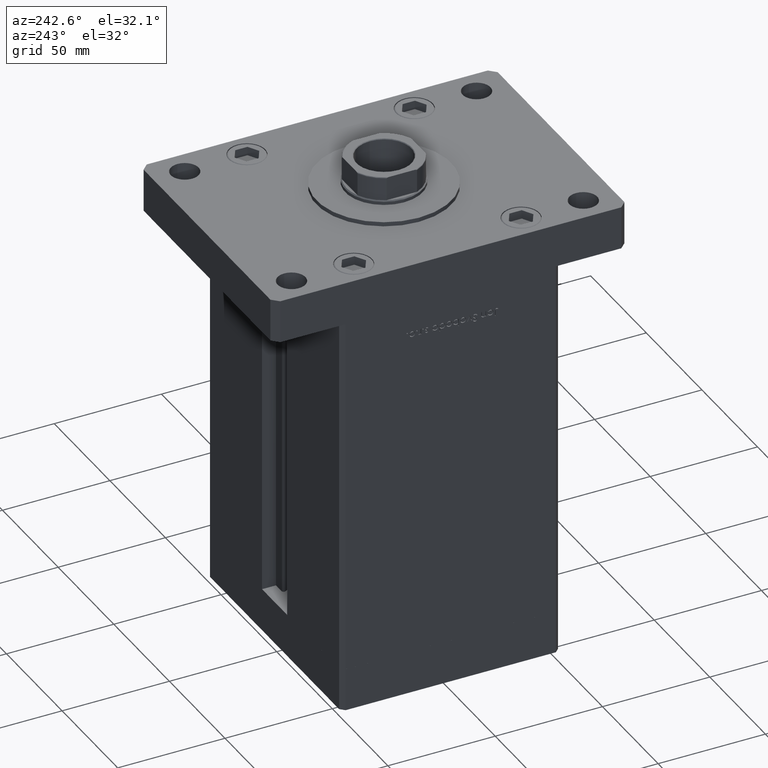
[diagram: clean part render]
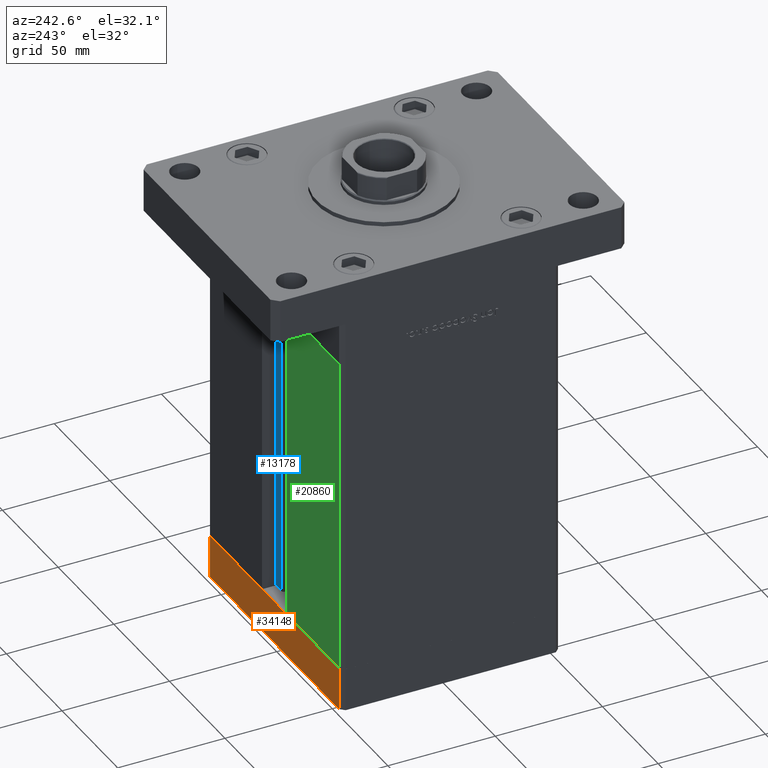
[diagram: same view with three faces highlighted in distinct colors, each labeled with its STEP entity id]
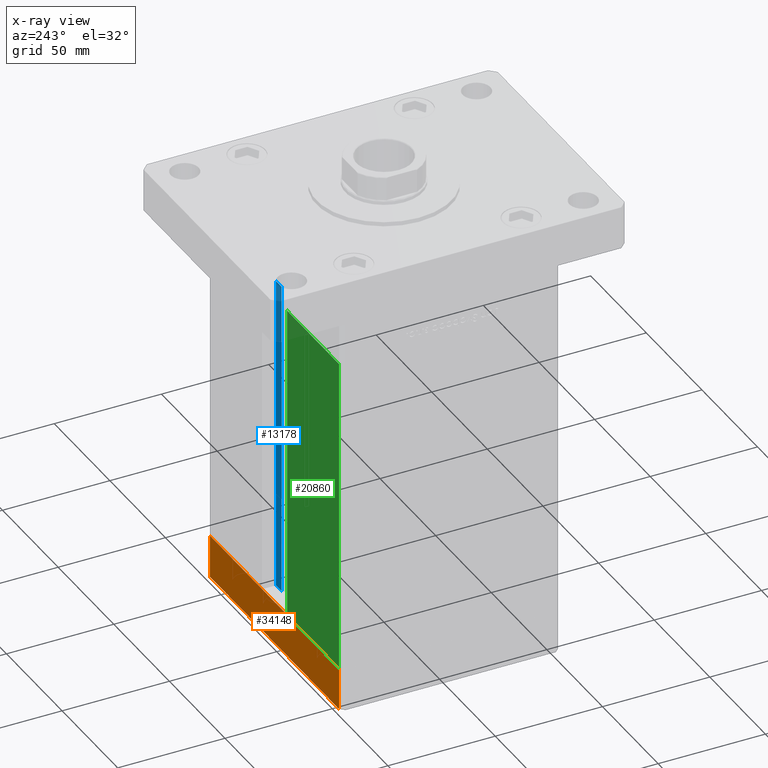
[diagram: x-ray of the same camera — body ghosted, the three highlighted faces saturated]
A machine part, auxiliary view with three faces highlighted in distinct colors.
The next image is the same camera in x-ray (body ghosted, the three faces saturated) — at least one of them is partly hidden behind the body in this view.
Their STEP definitions:

[orange] entity #34148 — the highlighted planar face has unit normal (0, 1, 0).
#1239 = VERTEX_POINT ( 'NONE', #17896 ) ;
#2197 = EDGE_LOOP ( 'NONE', ( #2390, #38543, #43592, #29533 ) ) ;
#2390 = ORIENTED_EDGE ( 'NONE', *, *, #27929, .F. ) ;
#3596 = CARTESIAN_POINT ( 'NONE',  ( -57.99999999999999289, 50.99999999999997868, -20.00000000000000000 ) ) ;
#4270 = CARTESIAN_POINT ( 'NONE',  ( 57.99999999999993605, 51.00000000000000711, -20.00000000000000000 ) ) ;
#5277 = CARTESIAN_POINT ( 'NONE',  ( 57.99999999999993605, 51.00000000000000711, -20.00000000000000000 ) ) ;
#7155 = VERTEX_POINT ( 'NONE', #10801 ) ;
#8346 = LINE ( 'NONE', #4270, #28857 ) ;
#8905 = LINE ( 'NONE', #42923, #33171 ) ;
#10801 = CARTESIAN_POINT ( 'NONE',  ( 57.99999999999993605, 51.00000000000000711, 0.000000000000000000 ) ) ;
#13573 = VECTOR ( 'NONE', #22764, 1000.000000000000000 ) ;
#14055 = DIRECTION ( 'NONE',  ( 0.000000000000000000, 0.000000000000000000, 1.000000000000000000 ) ) ;
#14091 = EDGE_CURVE ( 'NONE', #48320, #47201, #8346, .T. ) ;
#16516 = CARTESIAN_POINT ( 'NONE',  ( 57.99999999999993605, 51.00000000000000711, 0.000000000000000000 ) ) ;
#16806 = FACE_OUTER_BOUND ( 'NONE', #2197, .T. ) ;
#17896 = CARTESIAN_POINT ( 'NONE',  ( -57.99999999999999289, 50.99999999999997868, 0.000000000000000000 ) ) ;
#20892 = CARTESIAN_POINT ( 'NONE',  ( 57.99999999999993605, 51.00000000000000711, -20.00000000000000000 ) ) ;
#22764 = DIRECTION ( 'NONE',  ( 0.000000000000000000, 0.000000000000000000, 1.000000000000000000 ) ) ;
#26566 = LINE ( 'NONE', #52407, #13573 ) ;
#27929 = EDGE_CURVE ( 'NONE', #7155, #1239, #53807, .T. ) ;
#28857 = VECTOR ( 'NONE', #33947, 1000.000000000000000 ) ;
#29533 = ORIENTED_EDGE ( 'NONE', *, *, #35177, .T. ) ;
#32629 = VECTOR ( 'NONE', #33117, 1000.000000000000000 ) ;
#33117 = DIRECTION ( 'NONE',  ( -1.000000000000000000, -2.392722035830079958E-16, 0.000000000000000000 ) ) ;
#33171 = VECTOR ( 'NONE', #14055, 1000.000000000000000 ) ;
#33947 = DIRECTION ( 'NONE',  ( -1.000000000000000000, -2.392722035830079958E-16, 0.000000000000000000 ) ) ;
#33990 = AXIS2_PLACEMENT_3D ( 'NONE', #20892, #53569, #53831 ) ;
#34148 = ADVANCED_FACE ( 'NONE', ( #16806 ), #36970, .T. ) ;
#35177 = EDGE_CURVE ( 'NONE', #47201, #1239, #8905, .T. ) ;
#36970 = PLANE ( 'NONE',  #33990 ) ;
#38543 = ORIENTED_EDGE ( 'NONE', *, *, #53202, .F. ) ;
#42923 = CARTESIAN_POINT ( 'NONE',  ( -57.99999999999999289, 50.99999999999997868, -20.00000000000000000 ) ) ;
#43592 = ORIENTED_EDGE ( 'NONE', *, *, #14091, .T. ) ;
#47201 = VERTEX_POINT ( 'NONE', #3596 ) ;
#48320 = VERTEX_POINT ( 'NONE', #5277 ) ;
#52407 = CARTESIAN_POINT ( 'NONE',  ( 57.99999999999993605, 51.00000000000000711, -20.00000000000000000 ) ) ;
#53202 = EDGE_CURVE ( 'NONE', #48320, #7155, #26566, .T. ) ;
#53569 = DIRECTION ( 'NONE',  ( -2.392722035830079958E-16, 1.000000000000000000, 0.000000000000000000 ) ) ;
#53807 = LINE ( 'NONE', #16516, #32629 ) ;
#53831 = DIRECTION ( 'NONE',  ( -1.000000000000000000, -2.392722035830079958E-16, 0.000000000000000000 ) ) ;

[blue] entity #13178 — the highlighted planar face has unit normal (0, -1, 0).
#1051 = PLANE ( 'NONE',  #34918 ) ;
#2472 = EDGE_LOOP ( 'NONE', ( #11093, #16802, #29112, #45044 ) ) ;
#3771 = EDGE_CURVE ( 'NONE', #43218, #46542, #11744, .T. ) ;
#9486 = FACE_OUTER_BOUND ( 'NONE', #2472, .T. ) ;
#9618 = EDGE_CURVE ( 'NONE', #43218, #10336, #11582, .T. ) ;
#10336 = VERTEX_POINT ( 'NONE', #33322 ) ;
#10445 = CARTESIAN_POINT ( 'NONE',  ( 11.25000000000000178, 44.50000000000000000, 0.000000000000000000 ) ) ;
#11093 = ORIENTED_EDGE ( 'NONE', *, *, #38755, .F. ) ;
#11172 = VECTOR ( 'NONE', #41413, 1000.000000000000000 ) ;
#11582 = LINE ( 'NONE', #52972, #25263 ) ;
#11744 = LINE ( 'NONE', #28091, #11172 ) ;
#12310 = DIRECTION ( 'NONE',  ( -1.000000000000000000, 0.000000000000000000, 0.000000000000000000 ) ) ;
#13178 = ADVANCED_FACE ( 'NONE', ( #9486 ), #1051, .F. ) ;
#13837 = DIRECTION ( 'NONE',  ( 0.000000000000000000, -0.000000000000000000, -1.000000000000000000 ) ) ;
#16802 = ORIENTED_EDGE ( 'NONE', *, *, #3771, .F. ) ;
#21312 = LINE ( 'NONE', #49607, #30486 ) ;
#25149 = CARTESIAN_POINT ( 'NONE',  ( 6.183333333334001480, 44.50000000000000000, 0.000000000000000000 ) ) ;
#25263 = VECTOR ( 'NONE', #28200, 1000.000000000000000 ) ;
#28091 = CARTESIAN_POINT ( 'NONE',  ( 6.183333333334001480, 44.50000000000000000, 0.000000000000000000 ) ) ;
#28200 = DIRECTION ( 'NONE',  ( -0.000000000000000000, -0.000000000000000000, 1.000000000000000000 ) ) ;
#29112 = ORIENTED_EDGE ( 'NONE', *, *, #9618, .T. ) ;
#30486 = VECTOR ( 'NONE', #12310, 1000.000000000000000 ) ;
#32212 = VERTEX_POINT ( 'NONE', #51976 ) ;
#33322 = CARTESIAN_POINT ( 'NONE',  ( 6.183333333334001480, 44.50000000000000000, 148.5000000000000000 ) ) ;
#34494 = EDGE_CURVE ( 'NONE', #32212, #10336, #21312, .T. ) ;
#34918 = AXIS2_PLACEMENT_3D ( 'NONE', #47049, #50878, #13837 ) ;
#38467 = VECTOR ( 'NONE', #43667, 1000.000000000000000 ) ;
#38755 = EDGE_CURVE ( 'NONE', #46542, #32212, #52107, .T. ) ;
#41413 = DIRECTION ( 'NONE',  ( 1.000000000000000000, 0.000000000000000000, 0.000000000000000000 ) ) ;
#43218 = VERTEX_POINT ( 'NONE', #25149 ) ;
#43667 = DIRECTION ( 'NONE',  ( -0.000000000000000000, -0.000000000000000000, 1.000000000000000000 ) ) ;
#45044 = ORIENTED_EDGE ( 'NONE', *, *, #34494, .F. ) ;
#45377 = CARTESIAN_POINT ( 'NONE',  ( 11.25000000000000178, 44.50000000000000000, 0.000000000000000000 ) ) ;
#46542 = VERTEX_POINT ( 'NONE', #45377 ) ;
#47049 = CARTESIAN_POINT ( 'NONE',  ( 6.183333333334001480, 44.50000000000000000, 0.000000000000000000 ) ) ;
#49607 = CARTESIAN_POINT ( 'NONE',  ( 0.000000000000000000, 44.50000000000000000, 148.5000000000000000 ) ) ;
#50878 = DIRECTION ( 'NONE',  ( 0.000000000000000000, -1.000000000000000000, 0.000000000000000000 ) ) ;
#51976 = CARTESIAN_POINT ( 'NONE',  ( 11.25000000000000178, 44.50000000000000000, 148.5000000000000000 ) ) ;
#52107 = LINE ( 'NONE', #10445, #38467 ) ;
#52972 = CARTESIAN_POINT ( 'NONE',  ( 6.183333333334001480, 44.50000000000000000, 0.000000000000000000 ) ) ;

[green] entity #20860 — the highlighted planar face has unit normal (-0, -1, 0).
#2920 = VERTEX_POINT ( 'NONE', #4095 ) ;
#4095 = CARTESIAN_POINT ( 'NONE',  ( -57.99999999999999289, 51.00000000000000711, 148.5000000000000000 ) ) ;
#6123 = ORIENTED_EDGE ( 'NONE', *, *, #47085, .T. ) ;
#8114 = VECTOR ( 'NONE', #13771, 1000.000000000000000 ) ;
#9350 = DIRECTION ( 'NONE',  ( -1.000000000000000000, 1.484255380514915423E-16, 0.000000000000000000 ) ) ;
#9906 = CARTESIAN_POINT ( 'NONE',  ( -57.99999999999999289, 51.00000000000000711, 0.000000000000000000 ) ) ;
#10656 = AXIS2_PLACEMENT_3D ( 'NONE', #33862, #50469, #29785 ) ;
#12901 = FACE_OUTER_BOUND ( 'NONE', #34553, .T. ) ;
#13771 = DIRECTION ( 'NONE',  ( -0.000000000000000000, -0.000000000000000000, -1.000000000000000000 ) ) ;
#14720 = ORIENTED_EDGE ( 'NONE', *, *, #43097, .F. ) ;
#15089 = LINE ( 'NONE', #31699, #45566 ) ;
#15641 = CARTESIAN_POINT ( 'NONE',  ( -11.25000000000000178, 51.00000000000000000, 0.000000000000000000 ) ) ;
#16265 = LINE ( 'NONE', #32864, #8114 ) ;
#17269 = PLANE ( 'NONE',  #10656 ) ;
#18593 = VECTOR ( 'NONE', #35346, 1000.000000000000000 ) ;
#18743 = LINE ( 'NONE', #22846, #18593 ) ;
#18877 = VERTEX_POINT ( 'NONE', #9906 ) ;
#19496 = VECTOR ( 'NONE', #9350, 1000.000000000000000 ) ;
#20860 = ADVANCED_FACE ( 'NONE', ( #12901 ), #17269, .F. ) ;
#22846 = CARTESIAN_POINT ( 'NONE',  ( -11.25000000000000178, 51.00000000000000000, 148.5000000000000000 ) ) ;
#23455 = VERTEX_POINT ( 'NONE', #50666 ) ;
#23773 = EDGE_CURVE ( 'NONE', #2920, #23455, #18743, .T. ) ;
#23979 = EDGE_CURVE ( 'NONE', #2920, #18877, #16265, .T. ) ;
#27887 = DIRECTION ( 'NONE',  ( -0.000000000000000000, -0.000000000000000000, 1.000000000000000000 ) ) ;
#29785 = DIRECTION ( 'NONE',  ( 1.000000000000000000, -1.484255380514915423E-16, 0.000000000000000000 ) ) ;
#30057 = CARTESIAN_POINT ( 'NONE',  ( -11.25000000000000178, 51.00000000000000000, 0.000000000000000000 ) ) ;
#31699 = CARTESIAN_POINT ( 'NONE',  ( -11.25000000000000178, 51.00000000000000000, 0.000000000000000000 ) ) ;
#32864 = CARTESIAN_POINT ( 'NONE',  ( -57.99999999999999289, 51.00000000000000711, 148.5000000000000000 ) ) ;
#33061 = ORIENTED_EDGE ( 'NONE', *, *, #23979, .F. ) ;
#33862 = CARTESIAN_POINT ( 'NONE',  ( -11.25000000000000178, 51.00000000000000000, 148.5000000000000000 ) ) ;
#34553 = EDGE_LOOP ( 'NONE', ( #52345, #14720, #6123, #33061 ) ) ;
#35346 = DIRECTION ( 'NONE',  ( 1.000000000000000000, 0.000000000000000000, 0.000000000000000000 ) ) ;
#39558 = VERTEX_POINT ( 'NONE', #15641 ) ;
#42038 = LINE ( 'NONE', #30057, #19496 ) ;
#43097 = EDGE_CURVE ( 'NONE', #39558, #23455, #15089, .T. ) ;
#45566 = VECTOR ( 'NONE', #27887, 1000.000000000000000 ) ;
#47085 = EDGE_CURVE ( 'NONE', #39558, #18877, #42038, .T. ) ;
#50469 = DIRECTION ( 'NONE',  ( -1.484255380514915423E-16, -1.000000000000000000, 0.000000000000000000 ) ) ;
#50666 = CARTESIAN_POINT ( 'NONE',  ( -11.25000000000000178, 51.00000000000000000, 148.5000000000000000 ) ) ;
#52345 = ORIENTED_EDGE ( 'NONE', *, *, #23773, .T. ) ;